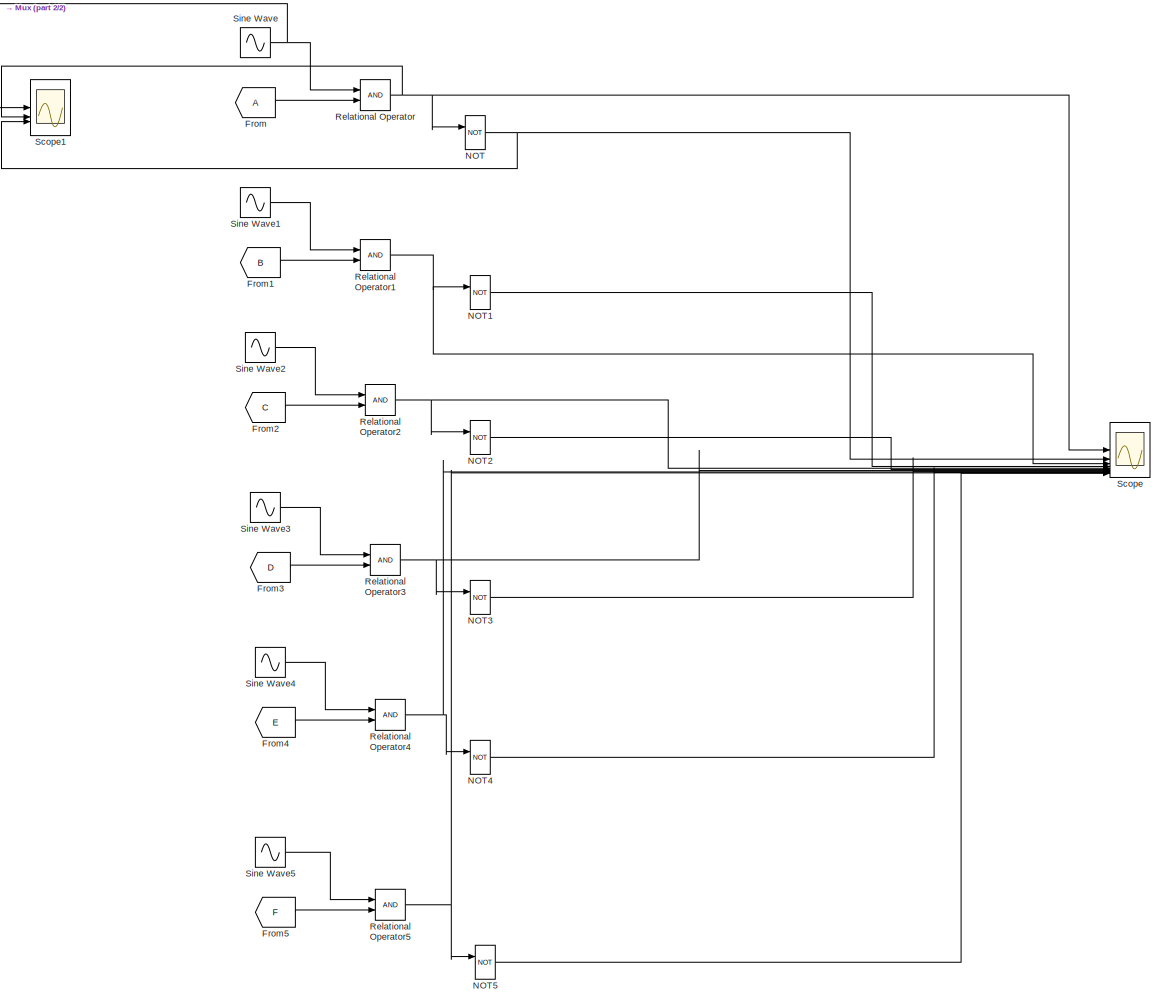
[diagram: root canvas - part 1/2, most of the canvas]
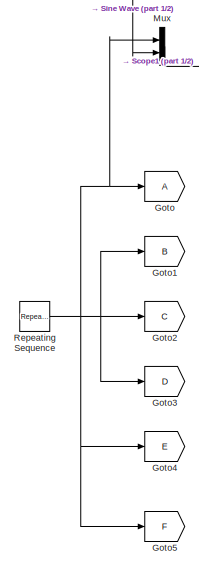
[diagram: root canvas - part 2/2, middle left region]
MODEL slx_8037e394abff
KIND model
CONFIG AbsTol = auto
CONFIG EnableMultiTasking = off
CONFIG FixedStep = 1e-6
CONFIG MaxStep = auto
CONFIG MinStep = auto
CONFIG RelTol = 1e-3
CONFIG SampleTimeConstraint = Unconstrained
CONFIG SolverName = FixedStepAuto
CONFIG StartTime = 0.0
CONFIG StopTime = 0.02
BLOCK [From] From
BLOCK [From] From1
  GotoTag = B
BLOCK [From] From2
  GotoTag = C
BLOCK [From] From3
  GotoTag = D
BLOCK [From] From4
  GotoTag = E
BLOCK [From] From5
  GotoTag = F
BLOCK [Goto] Goto
BLOCK [Goto] Goto1
  GotoTag = B
BLOCK [Goto] Goto2
  GotoTag = C
BLOCK [Goto] Goto3
  GotoTag = D
BLOCK [Goto] Goto4
  GotoTag = E
BLOCK [Goto] Goto5
  GotoTag = F
BLOCK [Mux] Mux
  DisplayOption = bar
  Inputs = 2
BLOCK [Logic] NOT
  AllPortsSameDT = off
  IconShape = distinctive
  Operator = NOT
  OutDataTypeStr = boolean
BLOCK [Logic] NOT1
  AllPortsSameDT = off
  IconShape = distinctive
  Operator = NOT
  OutDataTypeStr = boolean
BLOCK [Logic] NOT2
  AllPortsSameDT = off
  IconShape = distinctive
  Operator = NOT
  OutDataTypeStr = boolean
BLOCK [Logic] NOT3
  AllPortsSameDT = off
  IconShape = distinctive
  Operator = NOT
  OutDataTypeStr = boolean
BLOCK [Logic] NOT4
  AllPortsSameDT = off
  IconShape = distinctive
  Operator = NOT
  OutDataTypeStr = boolean
BLOCK [Logic] NOT5
  AllPortsSameDT = off
  IconShape = distinctive
  Operator = NOT
  OutDataTypeStr = boolean
BLOCK [RelationalOperator] Relational Operator
  InputSameDT = off
  OutDataTypeStr = boolean
  RndMeth = Simplest
BLOCK [RelationalOperator] Relational Operator1
  InputSameDT = off
  OutDataTypeStr = boolean
  RndMeth = Simplest
BLOCK [RelationalOperator] Relational Operator2
  InputSameDT = off
  OutDataTypeStr = boolean
  RndMeth = Simplest
BLOCK [RelationalOperator] Relational Operator3
  InputSameDT = off
  OutDataTypeStr = boolean
  RndMeth = Simplest
BLOCK [RelationalOperator] Relational Operator4
  InputSameDT = off
  OutDataTypeStr = boolean
  RndMeth = Simplest
BLOCK [RelationalOperator] Relational Operator5
  InputSameDT = off
  OutDataTypeStr = boolean
  RndMeth = Simplest
BLOCK [Reference] Repeating Sequence  REF=simulink/Sources/Repeating
Sequence
  SourceBlock = simulink/Sources/Repeating\nSequence
  SourceType = Repeating table
BLOCK [Scope] Scope
  Floating = off
  NumInputPorts = 12
  ScopeSpecificationString = Simulink.scopes.TimeScopeBlockCfg('CurrentConfiguration', extmgr.ConfigurationSet(extmgr.Configuration('Core','General UI',true),extmgr.Configuration('Core','Source UI',true),extmgr.Configuration('Sources','WiredSimulink',true),extmgr.Configuration('Visuals','Time Domain',true,'SerializedDisplays',{struct('MinYLimReal','-0.125','MaxYLimReal','1.125','YLabelReal','','MinYLimMag','0.00000','MaxYLimM...<+11602ch>
BLOCK [Scope] Scope1
  Floating = off
  NumInputPorts = 3
  ScopeSpecificationString = Simulink.scopes.TimeScopeBlockCfg('CurrentConfiguration', extmgr.ConfigurationSet(extmgr.Configuration('Core','General UI',true),extmgr.Configuration('Core','Source UI',true),extmgr.Configuration('Sources','WiredSimulink',true,'DataLoggingVariableName','ScopeData1'),extmgr.Configuration('Visuals','Time Domain',true,'SerializedDisplays',{struct('MinYLimReal','-1.25','MaxYLimReal','1.25','YLabelReal...<+4619ch>
BLOCK [Sin] Sine Wave
  Amplitude = 0.9
  Frequency = 2*pi*50
  SampleTime = 0
BLOCK [Sin] Sine Wave1
  Amplitude = 0.9
  Frequency = 2*pi*50
  Phase = pi/3
  SampleTime = 0
BLOCK [Sin] Sine Wave2
  Amplitude = 0.9
  Frequency = 2*pi*50
  Phase = (2*pi)/3
  SampleTime = 0
BLOCK [Sin] Sine Wave3
  Amplitude = 0.9
  Frequency = 2*pi*50
  Phase = (3*pi)/3
  SampleTime = 0
BLOCK [Sin] Sine Wave4
  Amplitude = 0.9
  Frequency = 2*pi*50
  Phase = (4*pi)/3
  SampleTime = 0
BLOCK [Sin] Sine Wave5
  Amplitude = 0.9
  Frequency = 2*pi*50
  Phase = (5*pi)/3
  SampleTime = 0
LINE From1:1 -> Relational Operator1:2
LINE From2:1 -> Relational Operator2:2
LINE From3:1 -> Relational Operator3:2
LINE From4:1 -> Relational Operator4:2
LINE From5:1 -> Relational Operator5:2
LINE From:1 -> Relational Operator:2
LINE Mux:1 -> Scope1:1
LINE NOT1:1 -> Scope:4
LINE NOT2:1 -> Scope:6
LINE NOT3:1 -> Scope:8
LINE NOT4:1 -> Scope:10
LINE NOT5:1 -> Scope:12
NET NOT:1 -> Scope1:3, Scope:2
NET Relational Operator1:1 -> NOT1:1, Scope:3
NET Relational Operator2:1 -> NOT2:1, Scope:5
NET Relational Operator3:1 -> NOT3:1, Scope:7
NET Relational Operator4:1 -> NOT4:1, Scope:9
NET Relational Operator5:1 -> NOT5:1, Scope:11
NET Relational Operator:1 -> NOT:1, Scope1:2, Scope:1
NET Repeating Sequence:1 -> Goto1:1, Goto2:1, Goto3:1, Goto4:1, Goto5:1, Goto:1, Mux:1
LINE Sine Wave1:1 -> Relational Operator1:1
LINE Sine Wave2:1 -> Relational Operator2:1
LINE Sine Wave3:1 -> Relational Operator3:1
LINE Sine Wave4:1 -> Relational Operator4:1
LINE Sine Wave5:1 -> Relational Operator5:1
NET Sine Wave:1 -> Mux:2, Relational Operator:1
note: NET lines group one-source signal fan-out (src -> all destinations, sorted); 1:1 wires keep LINE
